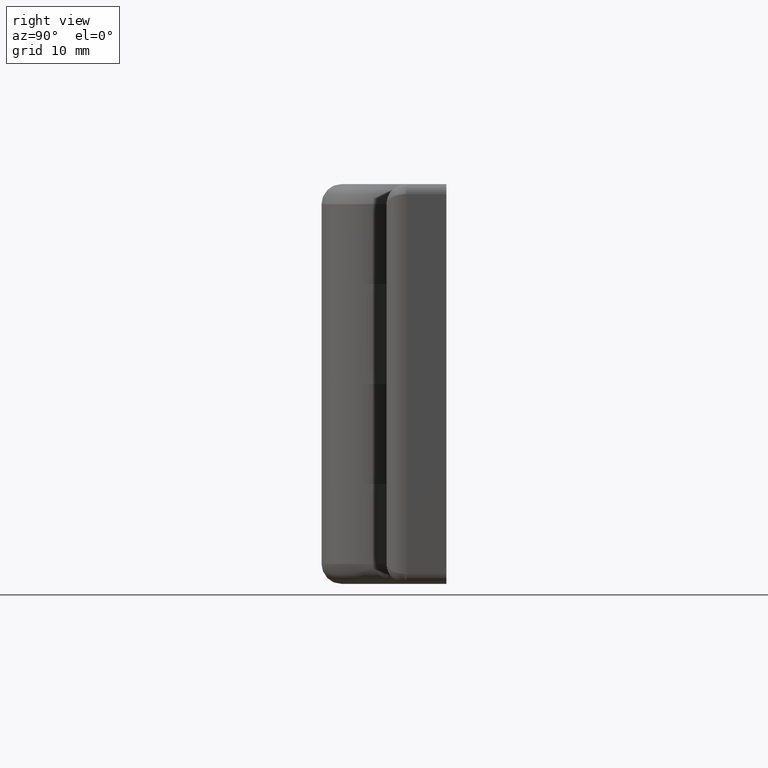
[diagram: clean part render]
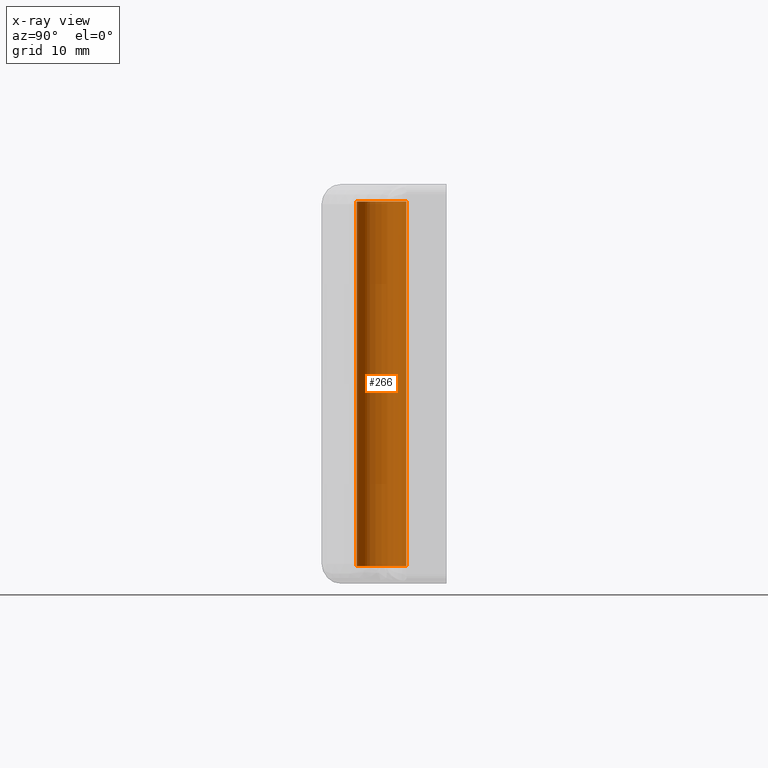
[diagram: x-ray — body ghosted, one internal face saturated and labeled with its STEP entity id]
A machine part, right view, then the same camera in x-ray: the body is ghosted and one INTERNAL B-rep face — a face not visible from any outside direction — is saturated and labeled: STEP entity #266.
In plain terms, the highlighted cylindrical surface (edge-blend (fillet) strip) has radius 2.5 mm, axis along (0, 0, 1).
Its self-contained STEP definition (entity closure, byte-faithful):
#266=ADVANCED_FACE('',(#1274),#1273,.T.);
#1273=CYLINDRICAL_SURFACE('',#2029,2.50000000000E+00);
#1274=FACE_OUTER_BOUND('',#2030,.T.);
#2026=CARTESIAN_POINT('',(6.63446299613E-13,7.88867874550E-14,3.91625000000E+01));
#2027=DIRECTION('',(3.46152718662E-14,4.11454977389E-15,1.00000000000E+00));
#2028=DIRECTION('',(-1.18034234656E-01,9.93009526364E-01,-9.31960273428E-27));
#2029=AXIS2_PLACEMENT_3D('',#2026,#2027,#2028);
#2030=EDGE_LOOP('',(#2558,#2559,#2560,#2561));
#2558=ORIENTED_EDGE('',*,*,#2827,.T.);
#2559=ORIENTED_EDGE('',*,*,#2832,.F.);
#2560=ORIENTED_EDGE('',*,*,#2830,.F.);
#2561=ORIENTED_EDGE('',*,*,#2833,.T.);
#2827=EDGE_CURVE('',#4562,#4554,#4563,.T.);
#2830=EDGE_CURVE('',#4576,#4583,#4584,.T.);
#2832=EDGE_CURVE('',#4583,#4554,#4596,.T.);
#2833=EDGE_CURVE('',#4576,#4562,#4602,.T.);
#4554=VERTEX_POINT('',#5667);
#4562=VERTEX_POINT('',#5673);
#4563=CIRCLE('',#5677,2.50000000000E+00);
#4576=VERTEX_POINT('',#5683);
#4583=VERTEX_POINT('',#5688);
#4584=CIRCLE('',#5692,2.50000000000E+00);
#4596=(BOUNDED_CURVE() B_SPLINE_CURVE(1,(#5697,#5698),.UNSPECIFIED.,.F.,.F.) B_SPLINE_CURVE_WITH_KNOTS((2,2),(8.33333335810E-02,9.16666666255E-01),.UNSPECIFIED.) CURVE() GEOMETRIC_REPRESENTATION_ITEM() RATIONAL_B_SPLINE_CURVE((1.00000000000E+00,1.00000000000E+00)) REPRESENTATION_ITEM('') );
#4602=(BOUNDED_CURVE() B_SPLINE_CURVE(1,(#5699,#5700),.UNSPECIFIED.,.F.,.F.) B_SPLINE_CURVE_WITH_KNOTS((2,2),(8.33333333333E-02,9.16666666667E-01),.UNSPECIFIED.) CURVE() GEOMETRIC_REPRESENTATION_ITEM() RATIONAL_B_SPLINE_CURVE((7.50000000000E-01,7.50000000000E-01)) REPRESENTATION_ITEM('') );
#5667=CARTESIAN_POINT('',(-2.95084678796E-01,2.48252392382E+00,3.82500000000E+01));
#5673=CARTESIAN_POINT('',(2.95514653300E-01,-2.48247277723E+00,3.82500000000E+01));
#5674=CARTESIAN_POINT('',(-1.77635683940E-15,-1.55431223448E-15,3.82500000000E+01));
#5675=DIRECTION('',(-6.68549270769E-14,-7.94672149969E-15,-1.00000000000E+00));
#5676=DIRECTION('',(1.00000000000E+00,8.74300631892E-16,-6.68549270769E-14));
#5677=AXIS2_PLACEMENT_3D('',#5674,#5675,#5676);
#5683=CARTESIAN_POINT('',(2.95514653299E-01,-2.48247277723E+00,1.75000000000E+00));
#5688=CARTESIAN_POINT('',(-2.95084678797E-01,2.48252392382E+00,1.75000000000E+00));
#5689=CARTESIAN_POINT('',(-1.77635683940E-15,-1.55431223448E-15,1.75000000000E+00));
#5690=DIRECTION('',(-6.11120113126E-15,-1.26306744001E-15,-1.00000000000E+00));
#5691=DIRECTION('',(1.00000000000E+00,8.74300631892E-16,-6.11120113126E-15));
#5692=AXIS2_PLACEMENT_3D('',#5689,#5690,#5691);
#5697=CARTESIAN_POINT('',(-2.95085586642E-01,2.48252381591E+00,1.75000001085E+00));
#5698=CARTESIAN_POINT('',(-2.95085586641E-01,2.48252381591E+00,3.82499999820E+01));
#5699=CARTESIAN_POINT('',(2.95085586641E-01,-2.48252381591E+00,1.75000000000E+00));
#5700=CARTESIAN_POINT('',(2.95085586642E-01,-2.48252381591E+00,3.82500000000E+01));